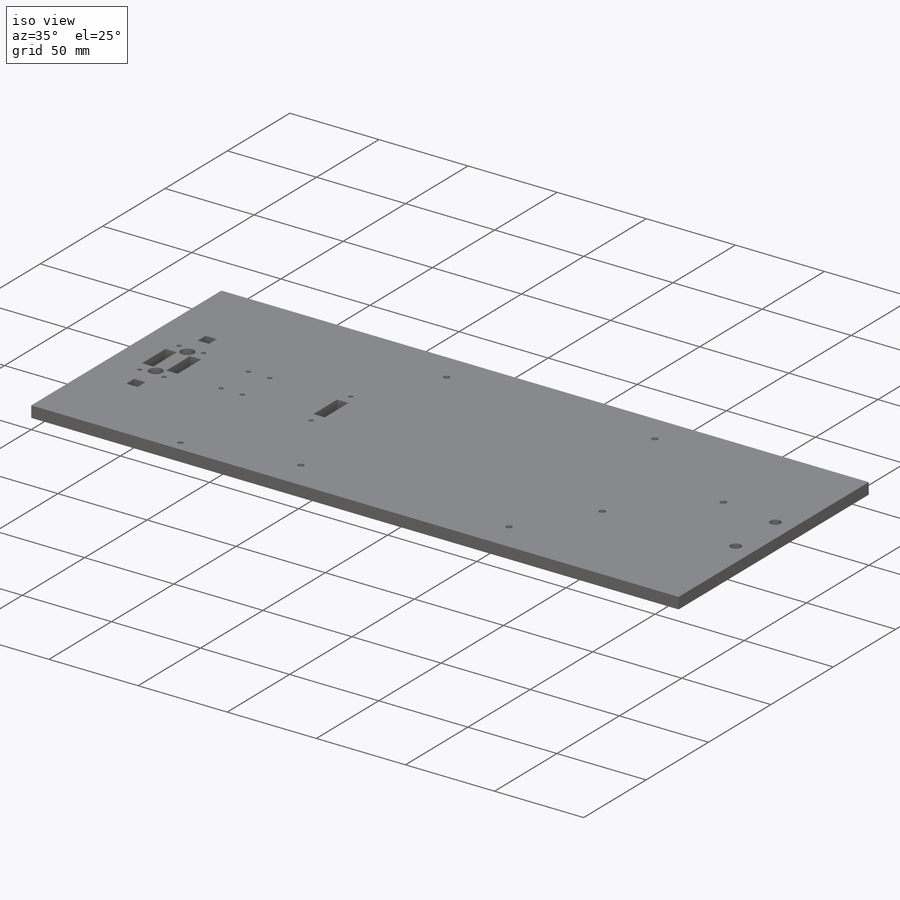
[diagram: iso view]
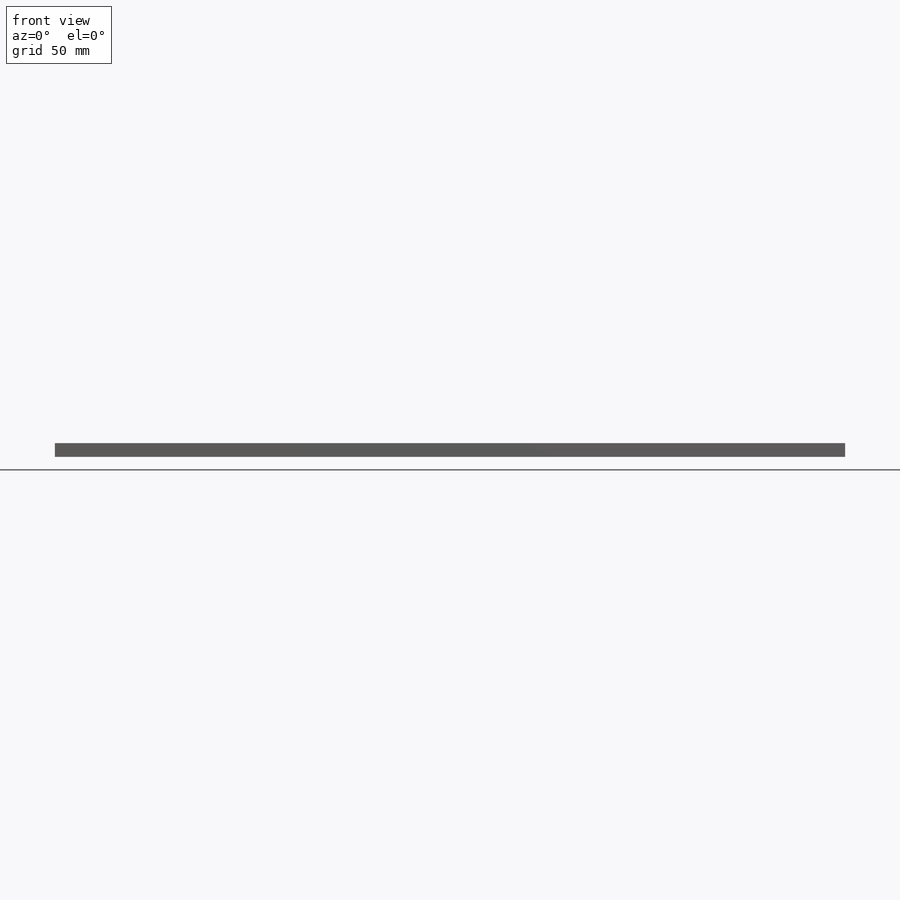
[diagram: front view]
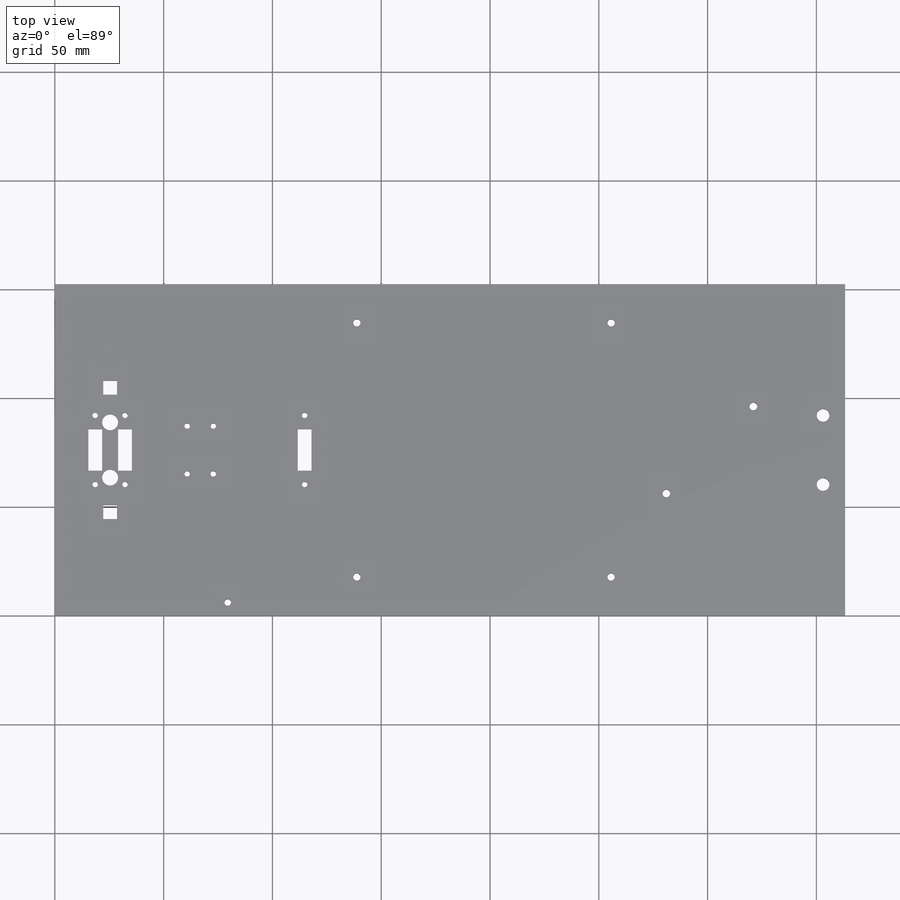
[diagram: top view]
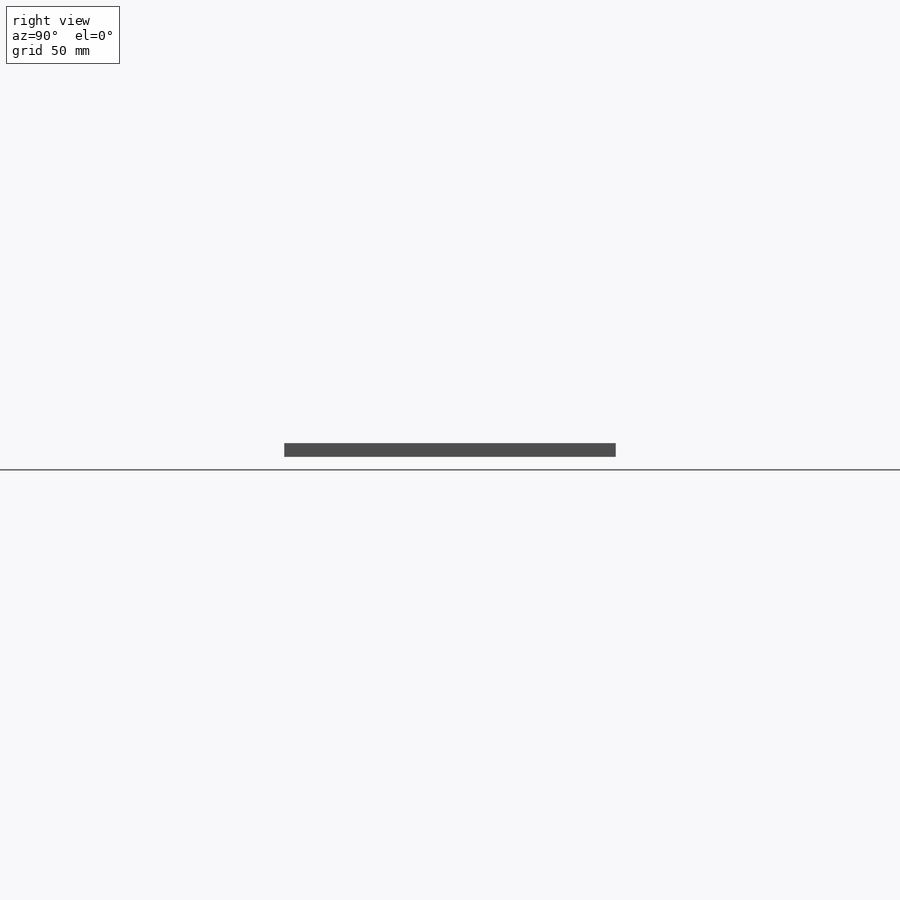
[diagram: right view]
SOLIDWORKS PART (.sldprt)
format: sldprt  version: not decoded by parser v0  size: 321,536 bytes
history: native  units: mm
features: sketch x7, cut_extrude x6, material x1, extrude x1 (+13 scaffold rows collapsed)
feature tree (28):
  scaffold x13  (default folders/planes/origin — collapsed)
  material  "Material <not specified>"
  sketch  "Sketch1"  dims[c1.D3=3.0mm c1.D7=3.0mm c2.D3=5.842mm c2.D7=7.3406mm c2.D1=152.4mm c2.D2=342.9mm c2.D4=327.66mm c2.D5=25.4mm c2.D6=31.75mm c2.D8=25.4mm c3.D2=10.16mm]
  extrude  "Boss-Extrude1"  Depth=6.35mm
  sketch  "Sketch2"  dims[D1=12.7mm D2=6.35mm D3=6.35mm D4=31.75mm D5=19.05mm D6=6.35mm D7=76.2mm]
  cut_extrude  "Cut-Extrude1"  [1 undecoded]
  sketch  "Sketch5"  dims[D1=3.0mm D4=3.0mm D2=79.4639mm D3=6.096mm]
  cut_extrude  "Cut-Extrude2"  [1 undecoded]
  sketch  "Sketch7"  dims[D2=3.302mm D1=116.84mm]
  cut_extrude  "Cut-Extrude3"  [1 undecoded]
  sketch  "Sketch8"  dims[D2=3.5mm D1=40.0mm D3=25.4mm]
  cut_extrude  "Cut-Extrude4"  [1 undecoded]
  sketch  "Sketch9"  dims[D1=2.5mm D2=6.35mm]
  cut_extrude  "Cut-Extrude5"  [1 undecoded]
  sketch  "Sketch10"  dims[D1=2.5mm D2=12.0mm D3=22.0mm D4=25.4mm]
  cut_extrude  "Cut-Extrude6"  [1 undecoded]
decode coverage: 8 of 14 modeling features carry decoded parameters
note: 6 parameter values undecoded
summary: no parameter record found for 6 features
note: suppression state not decoded; provenance and decode notes live in map.json
